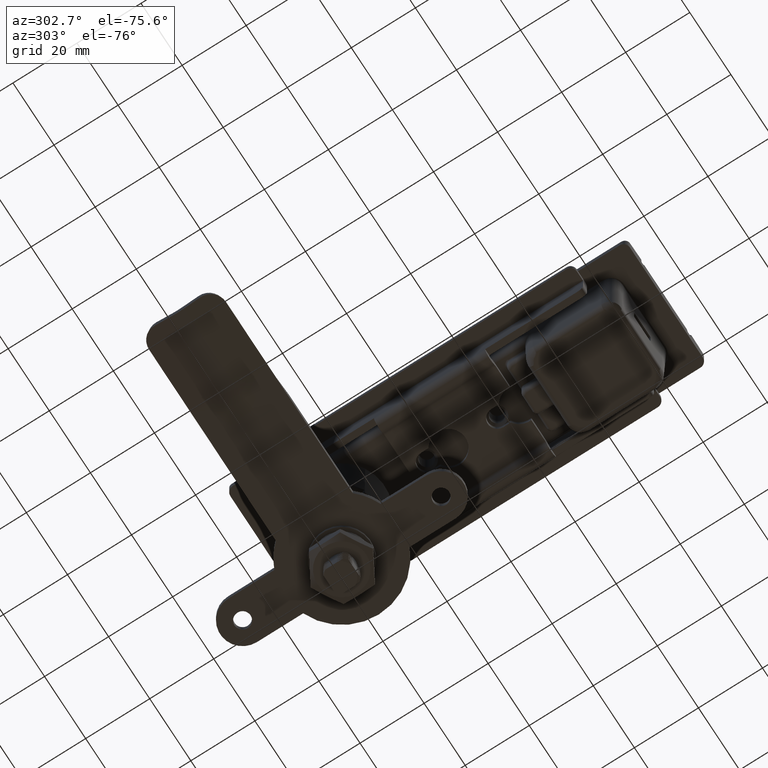
[diagram: clean part render]
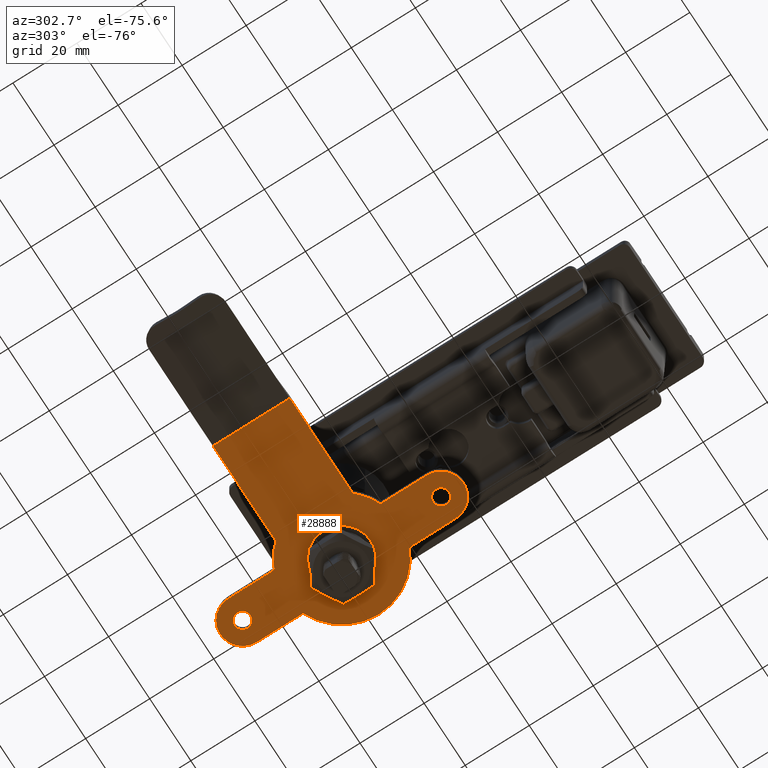
[diagram: same view with one face highlighted and labeled with its STEP entity id]
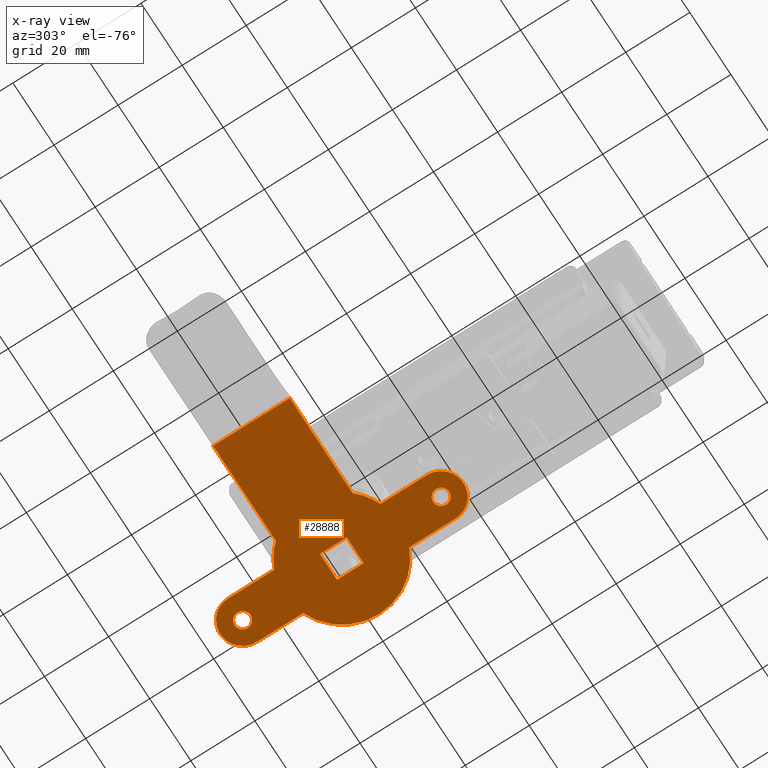
[diagram: x-ray of the same camera — body ghosted, the highlighted face saturated]
A machine part, auxiliary view. The second image highlights one B-rep face of the part: STEP entity #28888.
The next image is the same camera in x-ray: the body ghosted, the highlighted face saturated — about 0% of this face is hidden behind the body in this view.
In plain terms, the highlighted planar face has unit normal (0, 0, 1).
Its self-contained STEP definition (entity closure, byte-faithful):
#236=FACE_BOUND('',#8344,.T.);
#237=FACE_BOUND('',#8345,.T.);
#238=FACE_BOUND('',#8346,.T.);
#1666=CIRCLE('',#30836,2.5);
#1668=CIRCLE('',#30839,2.5);
#1670=CIRCLE('',#30842,7.);
#1672=CIRCLE('',#30846,18.);
#1674=CIRCLE('',#30850,7.);
#1676=CIRCLE('',#30854,18.);
#1678=CIRCLE('',#30859,18.);
#2608=LINE('',#43283,#4380);
#2625=LINE('',#43385,#4397);
#2628=LINE('',#43391,#4400);
#2631=LINE('',#43397,#4403);
#2634=LINE('',#43401,#4406);
#2638=LINE('',#43425,#4410);
#2642=LINE('',#43437,#4414);
#2646=LINE('',#43449,#4418);
#2650=LINE('',#43459,#4422);
#2652=LINE('',#43464,#4424);
#2656=LINE('',#43474,#4428);
#4380=VECTOR('',#33807,24.);
#4397=VECTOR('',#33844,8.3);
#4400=VECTOR('',#33849,8.3);
#4403=VECTOR('',#33854,8.3);
#4406=VECTOR('',#33859,8.3);
#4410=VECTOR('',#33883,14.416876048223);
#4414=VECTOR('',#33895,14.416876048223);
#4418=VECTOR('',#33907,14.416876048223);
#4422=VECTOR('',#33919,30.5835921350013);
#4424=VECTOR('',#33923,30.5835921350013);
#4428=VECTOR('',#33935,14.416876048223);
#6561=FACE_OUTER_BOUND('',#8343,.T.);
#8343=EDGE_LOOP('',(#20531,#20532,#20533,#20534,#20535,#20536,#20537,#20538,
#20539,#20540,#20541,#20542));
#8344=EDGE_LOOP('',(#20543));
#8345=EDGE_LOOP('',(#20544));
#8346=EDGE_LOOP('',(#20545,#20546,#20547,#20548));
#12034=VERTEX_POINT('',#43246);
#12035=VERTEX_POINT('',#43282);
#12045=VERTEX_POINT('',#43382);
#12046=VERTEX_POINT('',#43384);
#12048=VERTEX_POINT('',#43390);
#12050=VERTEX_POINT('',#43396);
#12052=VERTEX_POINT('',#43405);
#12054=VERTEX_POINT('',#43410);
#12057=VERTEX_POINT('',#43416);
#12058=VERTEX_POINT('',#43418);
#12060=VERTEX_POINT('',#43424);
#12062=VERTEX_POINT('',#43430);
#12064=VERTEX_POINT('',#43436);
#12066=VERTEX_POINT('',#43442);
#12068=VERTEX_POINT('',#43448);
#12070=VERTEX_POINT('',#43454);
#12072=VERTEX_POINT('',#43463);
#12074=VERTEX_POINT('',#43469);
#15202=EDGE_CURVE('',#12034,#12035,#2608,.T.);
#15223=EDGE_CURVE('',#12046,#12045,#2625,.T.);
#15226=EDGE_CURVE('',#12048,#12046,#2628,.T.);
#15229=EDGE_CURVE('',#12050,#12048,#2631,.T.);
#15232=EDGE_CURVE('',#12045,#12050,#2634,.T.);
#15234=EDGE_CURVE('',#12052,#12052,#1666,.T.);
#15236=EDGE_CURVE('',#12054,#12054,#1668,.T.);
#15239=EDGE_CURVE('',#12058,#12057,#1670,.T.);
#15242=EDGE_CURVE('',#12060,#12058,#2638,.T.);
#15245=EDGE_CURVE('',#12062,#12060,#1672,.T.);
#15248=EDGE_CURVE('',#12064,#12062,#2642,.T.);
#15251=EDGE_CURVE('',#12066,#12064,#1674,.T.);
#15254=EDGE_CURVE('',#12068,#12066,#2646,.T.);
#15257=EDGE_CURVE('',#12070,#12068,#1676,.T.);
#15260=EDGE_CURVE('',#12035,#12070,#2650,.T.);
#15262=EDGE_CURVE('',#12072,#12034,#2652,.T.);
#15265=EDGE_CURVE('',#12074,#12072,#1678,.T.);
#15268=EDGE_CURVE('',#12057,#12074,#2656,.T.);
#20531=ORIENTED_EDGE('',*,*,#15268,.T.);
#20532=ORIENTED_EDGE('',*,*,#15265,.T.);
#20533=ORIENTED_EDGE('',*,*,#15262,.T.);
#20534=ORIENTED_EDGE('',*,*,#15202,.T.);
#20535=ORIENTED_EDGE('',*,*,#15260,.T.);
#20536=ORIENTED_EDGE('',*,*,#15257,.T.);
#20537=ORIENTED_EDGE('',*,*,#15254,.T.);
#20538=ORIENTED_EDGE('',*,*,#15251,.T.);
#20539=ORIENTED_EDGE('',*,*,#15248,.T.);
#20540=ORIENTED_EDGE('',*,*,#15245,.T.);
#20541=ORIENTED_EDGE('',*,*,#15242,.T.);
#20542=ORIENTED_EDGE('',*,*,#15239,.T.);
#20543=ORIENTED_EDGE('',*,*,#15236,.T.);
#20544=ORIENTED_EDGE('',*,*,#15234,.T.);
#20545=ORIENTED_EDGE('',*,*,#15232,.T.);
#20546=ORIENTED_EDGE('',*,*,#15229,.T.);
#20547=ORIENTED_EDGE('',*,*,#15226,.T.);
#20548=ORIENTED_EDGE('',*,*,#15223,.T.);
#28365=PLANE('',#30862);
#28888=ADVANCED_FACE('',(#6561,#236,#237,#238),#28365,.F.);
#30836=AXIS2_PLACEMENT_3D('',#43406,#33864,#33865);
#30839=AXIS2_PLACEMENT_3D('',#43411,#33870,#33871);
#30842=AXIS2_PLACEMENT_3D('',#43419,#33877,#33878);
#30846=AXIS2_PLACEMENT_3D('',#43431,#33889,#33890);
#30850=AXIS2_PLACEMENT_3D('',#43443,#33901,#33902);
#30854=AXIS2_PLACEMENT_3D('',#43455,#33913,#33914);
#30859=AXIS2_PLACEMENT_3D('',#43470,#33929,#33930);
#30862=AXIS2_PLACEMENT_3D('',#43476,#33938,#33939);
#33807=DIRECTION('',(1.,0.,0.));
#33844=DIRECTION('',(-1.,0.,0.));
#33849=DIRECTION('',(0.,1.,0.));
#33854=DIRECTION('',(1.,0.,0.));
#33859=DIRECTION('',(0.,-1.,0.));
#33864=DIRECTION('center_axis',(0.,0.,1.));
#33865=DIRECTION('ref_axis',(1.,0.,0.));
#33870=DIRECTION('center_axis',(0.,0.,1.));
#33871=DIRECTION('ref_axis',(1.,0.,0.));
#33877=DIRECTION('center_axis',(0.,0.,-1.));
#33878=DIRECTION('ref_axis',(0.,1.,0.));
#33883=DIRECTION('',(-1.,0.,0.));
#33889=DIRECTION('center_axis',(0.,0.,-1.));
#33890=DIRECTION('ref_axis',(1.,0.,0.));
#33895=DIRECTION('',(-1.,0.,0.));
#33901=DIRECTION('center_axis',(0.,0.,-1.));
#33902=DIRECTION('ref_axis',(-6.34413156928661E-16,-1.,0.));
#33907=DIRECTION('',(1.,0.,0.));
#33913=DIRECTION('center_axis',(0.,0.,-1.));
#33914=DIRECTION('ref_axis',(1.,0.,0.));
#33919=DIRECTION('',(0.,-1.,0.));
#33923=DIRECTION('',(0.,1.,0.));
#33929=DIRECTION('center_axis',(0.,0.,-1.));
#33930=DIRECTION('ref_axis',(1.,0.,0.));
#33935=DIRECTION('',(1.,0.,0.));
#33938=DIRECTION('center_axis',(0.,0.,1.));
#33939=DIRECTION('ref_axis',(1.,0.,0.));
#43246=CARTESIAN_POINT('',(-12.,44.,24.5));
#43282=CARTESIAN_POINT('',(12.,44.,24.5));
#43283=CARTESIAN_POINT('',(-12.,44.,24.5));
#43382=CARTESIAN_POINT('',(-4.15,4.15,24.5));
#43384=CARTESIAN_POINT('',(4.15,4.15,24.5));
#43385=CARTESIAN_POINT('',(4.15,4.15,24.5));
#43390=CARTESIAN_POINT('',(4.15,-4.15,24.5));
#43391=CARTESIAN_POINT('',(4.15,-4.15,24.5));
#43396=CARTESIAN_POINT('',(-4.15,-4.15,24.5));
#43397=CARTESIAN_POINT('',(-4.15,-4.15,24.5));
#43401=CARTESIAN_POINT('',(-4.15,4.15,24.5));
#43405=CARTESIAN_POINT('',(-33.5,-3.06161699786838E-16,24.5));
#43406=CARTESIAN_POINT('Origin',(-31.,0.,24.5));
#43410=CARTESIAN_POINT('',(28.5,-3.06161699786838E-16,24.5));
#43411=CARTESIAN_POINT('Origin',(31.,0.,24.5));
#43416=CARTESIAN_POINT('',(-31.,7.,24.5));
#43418=CARTESIAN_POINT('',(-31.,-7.,24.5));
#43419=CARTESIAN_POINT('Origin',(-31.,0.,24.5));
#43424=CARTESIAN_POINT('',(-16.583123951777,-7.,24.5));
#43425=CARTESIAN_POINT('',(-31.,-7.,24.5));
#43430=CARTESIAN_POINT('',(16.583123951777,-7.,24.5));
#43431=CARTESIAN_POINT('Origin',(0.,0.,24.5));
#43436=CARTESIAN_POINT('',(31.,-7.,24.5));
#43437=CARTESIAN_POINT('',(-31.,-7.,24.5));
#43442=CARTESIAN_POINT('',(31.,7.,24.5));
#43443=CARTESIAN_POINT('Origin',(31.,0.,24.5));
#43448=CARTESIAN_POINT('',(16.583123951777,7.,24.5));
#43449=CARTESIAN_POINT('',(31.,7.,24.5));
#43454=CARTESIAN_POINT('',(12.,13.4164078649987,24.5));
#43455=CARTESIAN_POINT('Origin',(0.,0.,24.5));
#43459=CARTESIAN_POINT('',(12.,44.,24.5));
#43463=CARTESIAN_POINT('',(-12.,13.4164078649987,24.5));
#43464=CARTESIAN_POINT('',(-12.,13.4164078649987,24.5));
#43469=CARTESIAN_POINT('',(-16.583123951777,7.,24.5));
#43470=CARTESIAN_POINT('Origin',(0.,0.,24.5));
#43474=CARTESIAN_POINT('',(31.,7.,24.5));
#43476=CARTESIAN_POINT('Origin',(0.,13.,24.5));